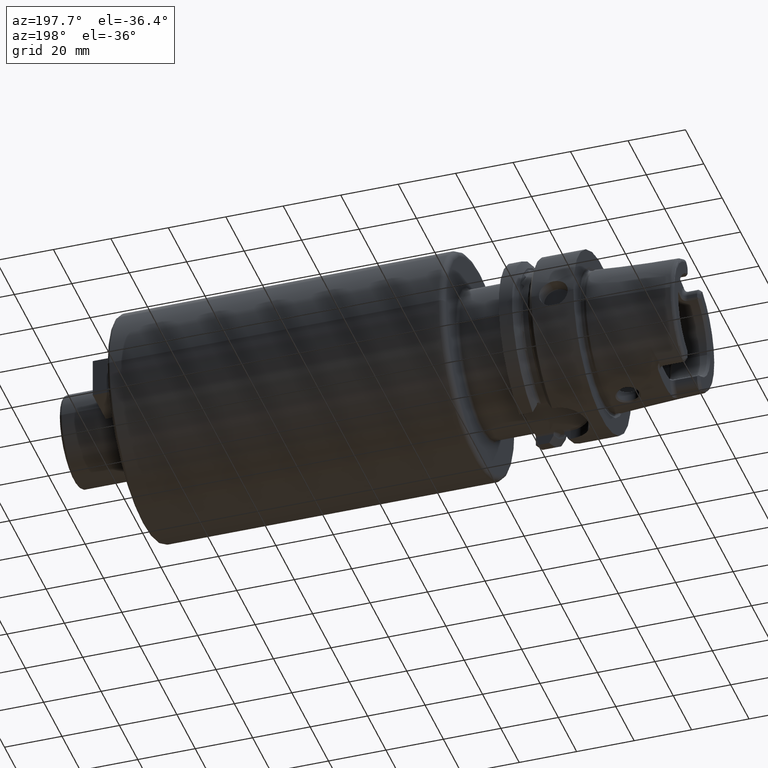
[diagram: clean part render]
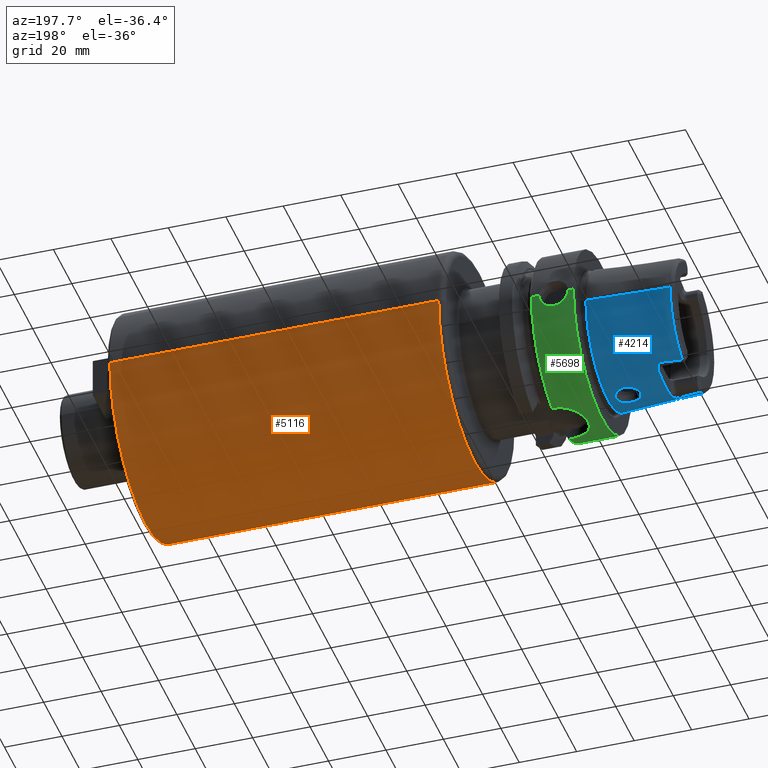
[diagram: same view with three faces highlighted in distinct colors, each labeled with its STEP entity id]
A machine part, auxiliary view with three faces highlighted in distinct colors.
Their STEP definitions:

[orange] entity #5116 — the highlighted cylindrical surface (partial cylindrical patch) has radius 39 mm, axis along (1, 0, 0).
#1526=CARTESIAN_POINT('',(4.45E1,0.E0,0.E0));
#1527=DIRECTION('',(1.E0,0.E0,0.E0));
#1528=DIRECTION('',(0.E0,-1.E0,0.E0));
#1529=AXIS2_PLACEMENT_3D('',#1526,#1527,#1528);
#1531=DIRECTION('',(-1.E0,0.E0,0.E0));
#1532=VECTOR('',#1531,1.145E2);
#1533=CARTESIAN_POINT('',(1.59E2,-3.9E1,2.205712108743E-14));
#1534=LINE('',#1533,#1532);
#1535=CARTESIAN_POINT('',(1.59E2,0.E0,0.E0));
#1536=DIRECTION('',(-1.E0,0.E0,0.E0));
#1537=DIRECTION('',(0.E0,1.E0,0.E0));
#1538=AXIS2_PLACEMENT_3D('',#1535,#1536,#1537);
#1540=DIRECTION('',(-1.E0,0.E0,0.E0));
#1541=VECTOR('',#1540,1.145E2);
#1542=CARTESIAN_POINT('',(1.59E2,3.9E1,-2.325115171660E-14));
#1543=LINE('',#1542,#1541);
#3267=CARTESIAN_POINT('',(1.59E2,3.9E1,0.E0));
#3268=CARTESIAN_POINT('',(1.59E2,-3.9E1,0.E0));
#3269=VERTEX_POINT('',#3267);
#3270=VERTEX_POINT('',#3268);
#3368=CARTESIAN_POINT('',(4.45E1,-3.9E1,0.E0));
#3369=CARTESIAN_POINT('',(4.45E1,3.9E1,0.E0));
#3370=VERTEX_POINT('',#3368);
#3371=VERTEX_POINT('',#3369);
#5102=CARTESIAN_POINT('',(1.81E1,0.E0,0.E0));
#5103=DIRECTION('',(1.E0,0.E0,0.E0));
#5104=DIRECTION('',(0.E0,-1.E0,0.E0));
#5105=AXIS2_PLACEMENT_3D('',#5102,#5103,#5104);
#5106=CYLINDRICAL_SURFACE('',#5105,3.9E1);
#5107=ORIENTED_EDGE('',*,*,#5092,.F.);
#5109=ORIENTED_EDGE('',*,*,#5108,.F.);
#5111=ORIENTED_EDGE('',*,*,#5110,.F.);
#5113=ORIENTED_EDGE('',*,*,#5112,.T.);
#5114=EDGE_LOOP('',(#5107,#5109,#5111,#5113));
#5115=FACE_OUTER_BOUND('',#5114,.F.);
#5116=ADVANCED_FACE('',(#5115),#5106,.T.);
#1530=CIRCLE('',#1529,3.9E1);
#1539=CIRCLE('',#1538,3.9E1);
#5092=EDGE_CURVE('',#3370,#3371,#1530,.T.);
#5108=EDGE_CURVE('',#3270,#3370,#1534,.T.);
#5110=EDGE_CURVE('',#3269,#3270,#1539,.T.);
#5112=EDGE_CURVE('',#3269,#3371,#1543,.T.);

[blue] entity #4214 — the highlighted conical surface has half-angle 2.868 deg.
#172=CARTESIAN_POINT('',(-3.086004306431E1,9.562027931336E0,-2.067E1));
#180=CARTESIAN_POINT('',(-3.086004306431E1,0.E0,0.E0));
#181=DIRECTION('',(-1.E0,0.E0,0.E0));
#182=DIRECTION('',(0.E0,1.E0,0.E0));
#183=AXIS2_PLACEMENT_3D('',#180,#181,#182);
#266=CARTESIAN_POINT('',(-3.086004306431E1,0.E0,0.E0));
#267=DIRECTION('',(-1.E0,0.E0,0.E0));
#268=DIRECTION('',(0.E0,-4.198553792210E-1,-9.075910205259E-1));
#269=AXIS2_PLACEMENT_3D('',#266,#267,#268);
#715=CARTESIAN_POINT('',(-2.35E1,-1.040978349090E1,-2.067E1));
#716=CARTESIAN_POINT('',(-2.344355022851E1,-1.041607090076E1,-2.067E1));
#717=CARTESIAN_POINT('',(-2.332956993861E1,-1.041630964332E1,
-2.067627649687E1));
#718=CARTESIAN_POINT('',(-2.315431779142E1,-1.037517685704E1,
-2.070680447798E1));
#719=CARTESIAN_POINT('',(-2.298610382819E1,-1.029332142770E1,
-2.075709446100E1));
#720=CARTESIAN_POINT('',(-2.282168004898E1,-1.016791062235E1,
-2.082809580409E1));
#721=CARTESIAN_POINT('',(-2.266724538325E1,-9.999284585470E0,
-2.091827708343E1));
#722=CARTESIAN_POINT('',(-2.252949651780E1,-9.795860386621E0,
-2.102205159226E1));
#723=CARTESIAN_POINT('',(-2.240609239614E1,-9.556317791147E0,
-2.113897791639E1));
#724=CARTESIAN_POINT('',(-2.233295118151E1,-9.369771312934E0,
-2.122596447282E1));
#725=CARTESIAN_POINT('',(-2.229902715702E1,-9.27E0,-2.127129858661E1));
#732=CARTESIAN_POINT('',(-2.229902715702E1,-9.27E0,-2.127129858661E1));
#733=CARTESIAN_POINT('',(-2.223399395074E1,-9.078735889296E0,
-2.135820522042E1));
#734=CARTESIAN_POINT('',(-2.212138063131E1,-8.709703982970E0,
-2.151897497246E1));
#735=CARTESIAN_POINT('',(-2.202143095510E1,-8.195867731278E0,
-2.172483116732E1));
#736=CARTESIAN_POINT('',(-2.2E1,-7.876905772307E0,-2.184209600703E1));
#737=CARTESIAN_POINT('',(-2.2E1,-7.723914364163E0,-2.189606426911E1));
#744=CARTESIAN_POINT('',(-3.086004306431E1,9.562027931336E0,-2.067E1));
#745=CARTESIAN_POINT('',(-3.006933576531E1,9.656377942908E0,-2.067E1));
#746=CARTESIAN_POINT('',(-2.846987211493E1,9.844931102331E0,-2.067E1));
#747=CARTESIAN_POINT('',(-2.601704943476E1,1.012739619931E1,-2.067E1));
#748=CARTESIAN_POINT('',(-2.434508424921E1,1.031565749353E1,-2.067E1));
#749=CARTESIAN_POINT('',(-2.35E1,1.040978349090E1,-2.067E1));
#751=CARTESIAN_POINT('',(-2.2E1,0.E0,0.E0));
#752=DIRECTION('',(1.E0,0.E0,0.E0));
#753=DIRECTION('',(0.E0,-3.326627708379E-1,-9.430458530201E-1));
#754=AXIS2_PLACEMENT_3D('',#751,#752,#753);
#756=CARTESIAN_POINT('',(-2.35E1,-1.040978349090E1,-2.067E1));
#757=CARTESIAN_POINT('',(-2.434499363207E1,-1.031566758652E1,-2.067E1));
#758=CARTESIAN_POINT('',(-2.601683809497E1,-1.012742018211E1,-2.067E1));
#759=CARTESIAN_POINT('',(-2.846966522954E1,-9.844955281726E0,-2.067E1));
#760=CARTESIAN_POINT('',(-3.006924714753E1,-9.656388517097E0,-2.067E1));
#761=CARTESIAN_POINT('',(-3.086004306431E1,-9.562027931336E0,-2.067E1));
#763=DIRECTION('',(-9.987474205320E-1,5.003588692862E-2,0.E0));
#764=VECTOR('',#763,2.889623789861E1);
#765=CARTESIAN_POINT('',(-2.E0,-2.422042414966E1,0.E0));
#766=LINE('',#765,#764);
#767=CARTESIAN_POINT('',(-2.E0,0.E0,0.E0));
#768=DIRECTION('',(1.E0,0.E0,0.E0));
#769=DIRECTION('',(0.E0,-1.E0,0.E0));
#770=AXIS2_PLACEMENT_3D('',#767,#768,#769);
#772=DIRECTION('',(-9.987474205320E-1,-5.003588692862E-2,0.E0));
#773=VECTOR('',#772,2.889623789861E1);
#774=CARTESIAN_POINT('',(-2.E0,2.422042414966E1,0.E0));
#775=LINE('',#774,#773);
#776=CARTESIAN_POINT('',(-4.750586214018E0,5.673461659763E-9,
-2.408258339423E1));
#777=CARTESIAN_POINT('',(-4.750477437961E0,2.111411076152E-1,
-2.408258884376E1));
#778=CARTESIAN_POINT('',(-4.781495656806E0,6.343409338442E-1,
-2.407562144168E1));
#779=CARTESIAN_POINT('',(-4.930078657106E0,1.283914855647E0,-2.404224907910E1));
#780=CARTESIAN_POINT('',(-5.182634392381E0,1.908800454949E0,-2.398769888200E1));
#781=CARTESIAN_POINT('',(-5.529831450162E0,2.484539069761E0,-2.391697022480E1));
#782=CARTESIAN_POINT('',(-5.960551469368E0,2.995586150016E0,-2.383614077825E1));
#783=CARTESIAN_POINT('',(-6.473793439058E0,3.438507792172E0,-2.374982588457E1));
#784=CARTESIAN_POINT('',(-7.048787066123E0,3.792204015972E0,-2.366626747645E1));
#785=CARTESIAN_POINT('',(-7.671452269175E0,4.050490920343E0,-2.359141310307E1));
#786=CARTESIAN_POINT('',(-8.326498075054E0,4.207389863949E0,-2.353035449331E1));
#787=CARTESIAN_POINT('',(-8.996688113385E0,4.259622037115E0,-2.348674331493E1));
#788=CARTESIAN_POINT('',(-9.664449704733E0,4.206963769363E0,-2.346231724919E1));
#789=CARTESIAN_POINT('',(-1.031524077611E1,4.051442761029E0,-2.345681057565E1));
#790=CARTESIAN_POINT('',(-1.093485325951E1,3.796098039719E0,-2.346839797168E1));
#791=CARTESIAN_POINT('',(-1.150677686976E1,3.447081430360E0,-2.349368587605E1));
#792=CARTESIAN_POINT('',(-1.201610511114E1,3.013688514077E0,-2.352797212386E1));
#793=CARTESIAN_POINT('',(-1.245275273991E1,2.504280742997E0,-2.356616658718E1));
#794=CARTESIAN_POINT('',(-1.280634613041E1,1.927107192660E0,-2.360307496745E1));
#795=CARTESIAN_POINT('',(-1.306351718265E1,1.301776136825E0,-2.363325793045E1));
#796=CARTESIAN_POINT('',(-1.321667495617E1,6.483699009348E-1,
-2.365261938940E1));
#797=CARTESIAN_POINT('',(-1.324953338827E1,2.167159282651E-1,
-2.365680321669E1));
#798=CARTESIAN_POINT('',(-1.324940828071E1,6.149879737228E-9,
-2.365680948441E1));
#800=CARTESIAN_POINT('',(-1.324940828071E1,6.149879737228E-9,
-2.365680948441E1));
#801=CARTESIAN_POINT('',(-1.324953102801E1,-2.137481481882E-1,
-2.365680333493E1));
#802=CARTESIAN_POINT('',(-1.321763433537E1,-6.412975014817E-1,
-2.365274945467E1));
#803=CARTESIAN_POINT('',(-1.306535183772E1,-1.296633810944E0,
-2.363348136753E1));
#804=CARTESIAN_POINT('',(-1.280777805154E1,-1.924231879999E0,
-2.360323471178E1));
#805=CARTESIAN_POINT('',(-1.245640925213E1,-2.498853587660E0,
-2.356653312143E1));
#806=CARTESIAN_POINT('',(-1.202279775894E1,-3.007095564138E0,
-2.352849478770E1));
#807=CARTESIAN_POINT('',(-1.151012912941E1,-3.444950000041E0,
-2.349384632376E1));
#808=CARTESIAN_POINT('',(-1.093833543731E1,-3.794219313343E0,
-2.346852201482E1));
#809=CARTESIAN_POINT('',(-1.031975853695E1,-4.049996047184E0,
-2.345683414568E1));
#810=CARTESIAN_POINT('',(-9.668027880621E0,-4.206485188960E0,
-2.346222186835E1));
#811=CARTESIAN_POINT('',(-8.998732245580E0,-4.259676561364E0,
-2.348662929012E1));
#812=CARTESIAN_POINT('',(-8.327946517995E0,-4.207637743620E0,
-2.353023608986E1));
#813=CARTESIAN_POINT('',(-7.672280726344E0,-4.050816496641E0,
-2.359131552533E1));
#814=CARTESIAN_POINT('',(-7.048298445734E0,-3.792045808672E0,
-2.366632099982E1));
#815=CARTESIAN_POINT('',(-6.472887987830E0,-3.437795786313E0,
-2.374997505426E1));
#816=CARTESIAN_POINT('',(-5.960766318899E0,-2.995689730409E0,
-2.383610614678E1));
#817=CARTESIAN_POINT('',(-5.531187494687E0,-2.486290041474E0,
-2.391671147691E1));
#818=CARTESIAN_POINT('',(-5.183401261358E0,-1.910526594455E0,
-2.398753185570E1));
#819=CARTESIAN_POINT('',(-4.929997199649E0,-1.284003067748E0,
-2.404226458263E1));
#820=CARTESIAN_POINT('',(-4.781340780308E0,-6.332209723674E-1,
-2.407566103624E1));
#821=CARTESIAN_POINT('',(-4.750402434471E0,-2.105981632370E-1,
-2.408259260134E1));
#822=CARTESIAN_POINT('',(-4.750586214018E0,5.673461659763E-9,
-2.408258339423E1));
#832=CARTESIAN_POINT('',(-2.229902715702E1,9.27E0,-2.127129858661E1));
#833=CARTESIAN_POINT('',(-2.233311157770E1,9.370243041714E0,-2.122575012858E1));
#834=CARTESIAN_POINT('',(-2.240658425841E1,9.557497215840E0,-2.113842140416E1));
#835=CARTESIAN_POINT('',(-2.253041527230E1,9.797438074146E0,-2.102126542838E1));
#836=CARTESIAN_POINT('',(-2.266830373788E1,1.000064778809E1,-2.091756656395E1));
#837=CARTESIAN_POINT('',(-2.282373330426E1,1.017005110462E1,-2.082694270310E1));
#838=CARTESIAN_POINT('',(-2.299261366970E1,1.029790438197E1,-2.075446014923E1));
#839=CARTESIAN_POINT('',(-2.316533457542E1,1.037882348161E1,-2.070435505978E1));
#840=CARTESIAN_POINT('',(-2.333269177476E1,1.041609135758E1,-2.067621009348E1));
#841=CARTESIAN_POINT('',(-2.344467268621E1,1.041594588074E1,-2.067E1));
#842=CARTESIAN_POINT('',(-2.35E1,1.040978349090E1,-2.067E1));
#844=CARTESIAN_POINT('',(-2.2E1,7.723914364163E0,-2.189606426911E1));
#845=CARTESIAN_POINT('',(-2.2E1,7.876901135824E0,-2.184209764257E1));
#846=CARTESIAN_POINT('',(-2.202143124879E1,8.195856320393E0,-2.172483505793E1));
#847=CARTESIAN_POINT('',(-2.212136508173E1,8.709641843939E0,-2.151900085185E1));
#848=CARTESIAN_POINT('',(-2.223398514363E1,9.078709987396E0,-2.135821698973E1));
#849=CARTESIAN_POINT('',(-2.229902715702E1,9.27E0,-2.127129858661E1));
#2873=CARTESIAN_POINT('',(-2.E0,2.422042414966E1,0.E0));
#2874=CARTESIAN_POINT('',(-2.E0,-2.422042414966E1,0.E0));
#2875=VERTEX_POINT('',#2873);
#2876=VERTEX_POINT('',#2874);
#2877=CARTESIAN_POINT('',(-3.086004306431E1,2.277457525750E1,0.E0));
#2878=VERTEX_POINT('',#2877);
#2879=CARTESIAN_POINT('',(-3.086004306431E1,-2.277457525750E1,0.E0));
#2880=VERTEX_POINT('',#2879);
#2998=VERTEX_POINT('',#172);
#3000=CARTESIAN_POINT('',(-3.086004306431E1,-9.562027931336E0,-2.067E1));
#3001=VERTEX_POINT('',#3000);
#3004=CARTESIAN_POINT('',(-2.229902715702E1,-9.27E0,-2.127129858661E1));
#3006=VERTEX_POINT('',#3004);
#3007=VERTEX_POINT('',#737);
#3008=VERTEX_POINT('',#844);
#3009=VERTEX_POINT('',#849);
#3020=CARTESIAN_POINT('',(-2.35E1,-1.040978349090E1,-2.067E1));
#3021=VERTEX_POINT('',#3020);
#3022=CARTESIAN_POINT('',(-2.35E1,1.040978349090E1,-2.067E1));
#3023=VERTEX_POINT('',#3022);
#3088=VERTEX_POINT('',#776);
#3089=VERTEX_POINT('',#798);
#4184=CARTESIAN_POINT('',(-1.643002153216E1,0.E0,0.E0));
#4185=DIRECTION('',(1.E0,0.E0,0.E0));
#4186=DIRECTION('',(0.E0,-1.E0,0.E0));
#4187=AXIS2_PLACEMENT_3D('',#4184,#4185,#4186);
#4188=CONICAL_SURFACE('',#4187,2.349749970358E1,2.868042729042E0);
#4190=ORIENTED_EDGE('',*,*,#4189,.T.);
#4192=ORIENTED_EDGE('',*,*,#4191,.F.);
#4194=ORIENTED_EDGE('',*,*,#4193,.F.);
#4196=ORIENTED_EDGE('',*,*,#4195,.F.);
#4197=ORIENTED_EDGE('',*,*,#4174,.F.);
#4198=ORIENTED_EDGE('',*,*,#4163,.F.);
#4199=ORIENTED_EDGE('',*,*,#4150,.T.);
#4200=ORIENTED_EDGE('',*,*,#3553,.T.);
#4201=ORIENTED_EDGE('',*,*,#3411,.F.);
#4203=ORIENTED_EDGE('',*,*,#4202,.T.);
#4204=ORIENTED_EDGE('',*,*,#3407,.T.);
#4205=ORIENTED_EDGE('',*,*,#3525,.T.);
#4206=EDGE_LOOP('',(#4190,#4192,#4194,#4196,#4197,#4198,#4199,#4200,#4201,#4203,
#4204,#4205));
#4207=FACE_OUTER_BOUND('',#4206,.F.);
#4209=ORIENTED_EDGE('',*,*,#4208,.F.);
#4211=ORIENTED_EDGE('',*,*,#4210,.F.);
#4212=EDGE_LOOP('',(#4209,#4211));
#4213=FACE_BOUND('',#4212,.F.);
#4214=ADVANCED_FACE('',(#4207,#4213),#4188,.T.);
#184=CIRCLE('',#183,2.277457525750E1);
#270=CIRCLE('',#269,2.277457525750E1);
#726=B_SPLINE_CURVE_WITH_KNOTS('',3,(#715,#716,#717,#718,#719,#720,#721,#722,
#723,#724,#725),.UNSPECIFIED.,.F.,.F.,(4,1,1,1,1,1,1,1,4),(0.E0,1.25E-1,2.5E-1,
3.75E-1,5.E-1,6.25E-1,7.5E-1,8.75E-1,1.E0),.UNSPECIFIED.);
#738=B_SPLINE_CURVE_WITH_KNOTS('',3,(#732,#733,#734,#735,#736,#737),
.UNSPECIFIED.,.F.,.F.,(4,1,1,4),(0.E0,3.333333333333E-1,6.666666666667E-1,1.E0),
.UNSPECIFIED.);
#750=B_SPLINE_CURVE_WITH_KNOTS('',3,(#744,#745,#746,#747,#748,#749),
.UNSPECIFIED.,.F.,.F.,(4,1,1,4),(0.E0,3.333333333333E-1,6.666666666667E-1,1.E0),
.UNSPECIFIED.);
#755=CIRCLE('',#754,2.321845136054E1);
#762=B_SPLINE_CURVE_WITH_KNOTS('',3,(#756,#757,#758,#759,#760,#761),
.UNSPECIFIED.,.F.,.F.,(4,1,1,4),(0.E0,3.333333333333E-1,6.666666666667E-1,1.E0),
.UNSPECIFIED.);
#771=CIRCLE('',#770,2.422042414966E1);
#799=B_SPLINE_CURVE_WITH_KNOTS('',3,(#776,#777,#778,#779,#780,#781,#782,#783,
#784,#785,#786,#787,#788,#789,#790,#791,#792,#793,#794,#795,#796,#797,#798),
.UNSPECIFIED.,.F.,.F.,(4,1,1,1,1,1,1,1,1,1,1,1,1,1,1,1,1,1,1,1,4),(0.E0,5.E-2,
1.E-1,1.5E-1,2.E-1,2.5E-1,3.E-1,3.5E-1,4.E-1,4.5E-1,5.E-1,5.5E-1,6.E-1,6.5E-1,
7.E-1,7.5E-1,8.E-1,8.5E-1,9.E-1,9.5E-1,1.E0),.UNSPECIFIED.);
#823=B_SPLINE_CURVE_WITH_KNOTS('',3,(#800,#801,#802,#803,#804,#805,#806,#807,
#808,#809,#810,#811,#812,#813,#814,#815,#816,#817,#818,#819,#820,#821,#822),
.UNSPECIFIED.,.F.,.F.,(4,1,1,1,1,1,1,1,1,1,1,1,1,1,1,1,1,1,1,1,4),(0.E0,5.E-2,
1.E-1,1.5E-1,2.E-1,2.5E-1,3.E-1,3.5E-1,4.E-1,4.5E-1,5.E-1,5.5E-1,6.E-1,6.5E-1,
7.E-1,7.5E-1,8.E-1,8.5E-1,9.E-1,9.5E-1,1.E0),.UNSPECIFIED.);
#843=B_SPLINE_CURVE_WITH_KNOTS('',3,(#832,#833,#834,#835,#836,#837,#838,#839,
#840,#841,#842),.UNSPECIFIED.,.F.,.F.,(4,1,1,1,1,1,1,1,4),(0.E0,1.25E-1,2.5E-1,
3.75E-1,5.E-1,6.25E-1,7.5E-1,8.75E-1,1.E0),.UNSPECIFIED.);
#850=B_SPLINE_CURVE_WITH_KNOTS('',3,(#844,#845,#846,#847,#848,#849),
.UNSPECIFIED.,.F.,.F.,(4,1,1,4),(0.E0,3.333333333333E-1,6.666666666667E-1,1.E0),
.UNSPECIFIED.);
#3407=EDGE_CURVE('',#2875,#2878,#775,.T.);
#3411=EDGE_CURVE('',#2876,#2880,#766,.T.);
#3525=EDGE_CURVE('',#2878,#2998,#184,.T.);
#3553=EDGE_CURVE('',#3001,#2880,#270,.T.);
#4150=EDGE_CURVE('',#3021,#3001,#762,.T.);
#4163=EDGE_CURVE('',#3021,#3006,#726,.T.);
#4174=EDGE_CURVE('',#3006,#3007,#738,.T.);
#4189=EDGE_CURVE('',#2998,#3023,#750,.T.);
#4191=EDGE_CURVE('',#3009,#3023,#843,.T.);
#4193=EDGE_CURVE('',#3008,#3009,#850,.T.);
#4195=EDGE_CURVE('',#3007,#3008,#755,.T.);
#4202=EDGE_CURVE('',#2876,#2875,#771,.T.);
#4208=EDGE_CURVE('',#3088,#3089,#799,.T.);
#4210=EDGE_CURVE('',#3089,#3088,#823,.T.);

[green] entity #5698 — the highlighted cylindrical surface (partial cylindrical patch) has radius 31.5 mm, axis along (1, 0, 0).
#1073=CARTESIAN_POINT('',(-1.421085471520E-14,0.E0,0.E0));
#1074=DIRECTION('',(-1.E0,0.E0,0.E0));
#1075=DIRECTION('',(0.E0,1.E0,0.E0));
#1076=AXIS2_PLACEMENT_3D('',#1073,#1074,#1075);
#1124=CARTESIAN_POINT('',(2.E0,3.15E1,-1.916034746595E-14));
#1126=CARTESIAN_POINT('',(1.2E1,3.15E1,0.E0));
#1895=CARTESIAN_POINT('',(1.39675E1,9.0175E0,-3.018169467989E1));
#1896=CARTESIAN_POINT('',(1.358558656281E1,9.0175E0,-3.018169467989E1));
#1897=CARTESIAN_POINT('',(1.282118465468E1,8.969691357916E0,-3.019604517684E1));
#1898=CARTESIAN_POINT('',(1.165591828593E1,8.743491566228E0,-3.026274300150E1));
#1899=CARTESIAN_POINT('',(1.052276298313E1,8.361963120688E0,-3.037104920547E1));
#1900=CARTESIAN_POINT('',(9.456122836012E0,7.837772025634E0,-3.051135915032E1));
#1901=CARTESIAN_POINT('',(8.470252282138E0,7.180724754911E0,-3.067358430769E1));
#1902=CARTESIAN_POINT('',(7.575631308163E0,6.398050863983E0,-3.084741609441E1));
#1903=CARTESIAN_POINT('',(6.786194961893E0,5.497065304782E0,-3.102161724462E1));
#1904=CARTESIAN_POINT('',(6.130229967676E0,4.511622175765E0,-3.118093411543E1));
#1905=CARTESIAN_POINT('',(5.609342792779E0,3.453031312959E0,-3.131662634576E1));
#1906=CARTESIAN_POINT('',(5.228345621102E0,2.326812347583E0,-3.142101017036E1));
#1907=CARTESIAN_POINT('',(4.999797746036E0,1.164288452435E0,-3.148568890825E1));
#1908=CARTESIAN_POINT('',(4.925086592477E0,-1.642939922344E-4,
-3.150715972921E1));
#1909=CARTESIAN_POINT('',(4.999855898167E0,-1.164866928839E0,
-3.148567217088E1));
#1910=CARTESIAN_POINT('',(5.228566513789E0,-2.327652949522E0,
-3.142094829471E1));
#1911=CARTESIAN_POINT('',(5.609617740094E0,-3.453657849156E0,
-3.131655310854E1));
#1912=CARTESIAN_POINT('',(6.130421690937E0,-4.511937610781E0,
-3.118088635565E1));
#1913=CARTESIAN_POINT('',(6.786402135999E0,-5.497346241188E0,
-3.102156844966E1));
#1914=CARTESIAN_POINT('',(7.576014991373E0,-6.398444919226E0,
-3.084733497918E1));
#1915=CARTESIAN_POINT('',(8.470738074749E0,-7.181093772441E0,
-3.067349724349E1));
#1916=CARTESIAN_POINT('',(9.456668390199E0,-7.838101066607E0,
-3.051127521442E1));
#1917=CARTESIAN_POINT('',(1.052385858790E1,-8.362443708215E0,
-3.037091729406E1));
#1918=CARTESIAN_POINT('',(1.165737665338E1,-8.743869582945E0,
-3.026263280158E1));
#1919=CARTESIAN_POINT('',(1.282210884292E1,-8.969775642486E0,
-3.019601972103E1));
#1920=CARTESIAN_POINT('',(1.358595047E1,-9.0175E0,-3.018169467989E1));
#1921=CARTESIAN_POINT('',(1.39675E1,-9.0175E0,-3.018169467989E1));
#1923=DIRECTION('',(1.E0,0.E0,0.E0));
#1924=VECTOR('',#1923,6.550009252407E-1);
#1925=CARTESIAN_POINT('',(1.39675E1,9.0175E0,-3.018169467989E1));
#1926=LINE('',#1925,#1924);
#1927=CARTESIAN_POINT('',(1.462250092524E1,0.E0,0.E0));
#1928=DIRECTION('',(1.E0,0.E0,0.E0));
#1929=DIRECTION('',(0.E0,2.862698412698E-1,-9.581490374568E-1));
#1930=AXIS2_PLACEMENT_3D('',#1927,#1928,#1929);
#1932=DIRECTION('',(-1.E0,0.E0,0.E0));
#1933=VECTOR('',#1932,2.622500925241E0);
#1934=CARTESIAN_POINT('',(1.462250092524E1,3.15E1,0.E0));
#1935=LINE('',#1934,#1933);
#1936=CARTESIAN_POINT('',(7.E0,3.110064308017E1,-5.E0));
#1937=CARTESIAN_POINT('',(7.237711971861E0,3.110064308017E1,-5.E0));
#1938=CARTESIAN_POINT('',(7.708364793932E0,3.110604176585E1,-4.966603280739E0));
#1939=CARTESIAN_POINT('',(8.409071627816E0,3.113002370339E1,-4.815048141531E0));
#1940=CARTESIAN_POINT('',(9.077383280619E0,3.116768201896E1,-4.566768250610E0));
#1941=CARTESIAN_POINT('',(9.709737219660E0,3.121653000009E1,-4.222389763166E0));
#1942=CARTESIAN_POINT('',(1.028259694179E1,3.127184472959E1,-3.794310232818E0));
#1943=CARTESIAN_POINT('',(1.079381736502E1,3.133002109497E1,-3.283144879213E0));
#1944=CARTESIAN_POINT('',(1.122187341968E1,3.138511895323E1,-2.710559209569E0));
#1945=CARTESIAN_POINT('',(1.156650397528E1,3.143365111660E1,-2.077946235915E0));
#1946=CARTESIAN_POINT('',(1.181475018474E1,3.147092885130E1,-1.410108381556E0));
#1947=CARTESIAN_POINT('',(1.196660689769E1,3.149467147123E1,
-7.086190467967E-1));
#1948=CARTESIAN_POINT('',(1.2E1,3.15E1,-2.377578867780E-1));
#1949=CARTESIAN_POINT('',(1.2E1,3.15E1,0.E0));
#1951=CARTESIAN_POINT('',(2.E0,3.15E1,-1.916034746595E-14));
#1952=CARTESIAN_POINT('',(2.E0,3.15E1,-2.377563632343E-1));
#1953=CARTESIAN_POINT('',(2.033376819090E0,3.149467390288E1,
-7.086329282889E-1));
#1954=CARTESIAN_POINT('',(2.185379667149E0,3.147090888892E1,-1.410571551366E0));
#1955=CARTESIAN_POINT('',(2.433605027219E0,3.143363519165E1,-2.078170817110E0));
#1956=CARTESIAN_POINT('',(2.778328809062E0,3.138509141893E1,-2.710884364051E0));
#1957=CARTESIAN_POINT('',(3.206392404829E0,3.132999596018E1,-3.283376693298E0));
#1958=CARTESIAN_POINT('',(3.717592314676E0,3.127182433739E1,-3.794478939285E0));
#1959=CARTESIAN_POINT('',(4.290556434518E0,3.121650481486E1,-4.222574092482E0));
#1960=CARTESIAN_POINT('',(4.922767506481E0,3.116767216438E1,-4.566833856024E0));
#1961=CARTESIAN_POINT('',(5.591173550853E0,3.113001241939E1,-4.815121163512E0));
#1962=CARTESIAN_POINT('',(6.291762024521E0,3.110604002637E1,-4.966613612597E0));
#1963=CARTESIAN_POINT('',(6.762337956938E0,3.110064308017E1,-5.E0));
#1964=CARTESIAN_POINT('',(7.E0,3.110064308017E1,-5.E0));
#1966=DIRECTION('',(-1.E0,0.E0,1.086605287208E-14));
#1967=VECTOR('',#1966,2.E0);
#1968=CARTESIAN_POINT('',(2.E0,3.15E1,-1.916034746595E-14));
#1969=LINE('',#1968,#1967);
#1970=DIRECTION('',(-1.E0,0.E0,0.E0));
#1971=VECTOR('',#1970,1.462250092524E1);
#1972=CARTESIAN_POINT('',(1.462250092524E1,-3.15E1,0.E0));
#1973=LINE('',#1972,#1971);
#1974=CARTESIAN_POINT('',(1.462250092524E1,0.E0,0.E0));
#1975=DIRECTION('',(1.E0,0.E0,0.E0));
#1976=DIRECTION('',(0.E0,-1.E0,0.E0));
#1977=AXIS2_PLACEMENT_3D('',#1974,#1975,#1976);
#1979=DIRECTION('',(1.E0,0.E0,0.E0));
#1980=VECTOR('',#1979,6.550009252407E-1);
#1981=CARTESIAN_POINT('',(1.39675E1,-9.0175E0,-3.018169467989E1));
#1982=LINE('',#1981,#1980);
#2853=CARTESIAN_POINT('',(-1.421085471520E-14,3.15E1,0.E0));
#2854=CARTESIAN_POINT('',(-1.421085471520E-14,-3.15E1,0.E0));
#2855=VERTEX_POINT('',#2853);
#2856=VERTEX_POINT('',#2854);
#3074=CARTESIAN_POINT('',(1.462250092524E1,-3.15E1,0.E0));
#3075=VERTEX_POINT('',#3074);
#3102=CARTESIAN_POINT('',(7.E0,3.110064308017E1,-5.E0));
#3103=VERTEX_POINT('',#3102);
#3104=VERTEX_POINT('',#1124);
#3105=VERTEX_POINT('',#1126);
#3106=CARTESIAN_POINT('',(1.462250092524E1,3.15E1,0.E0));
#3107=VERTEX_POINT('',#3106);
#3180=CARTESIAN_POINT('',(1.39675E1,-9.0175E0,-3.018169467989E1));
#3181=VERTEX_POINT('',#3180);
#3182=CARTESIAN_POINT('',(1.39675E1,9.0175E0,-3.018169467989E1));
#3183=VERTEX_POINT('',#3182);
#3212=CARTESIAN_POINT('',(1.462250092524E1,9.0175E0,-3.018169467989E1));
#3213=VERTEX_POINT('',#3212);
#3214=CARTESIAN_POINT('',(1.462250092524E1,-9.0175E0,-3.018169467989E1));
#3215=VERTEX_POINT('',#3214);
#5676=CARTESIAN_POINT('',(-3.49E1,0.E0,0.E0));
#5677=DIRECTION('',(1.E0,0.E0,0.E0));
#5678=DIRECTION('',(0.E0,-1.E0,0.E0));
#5679=AXIS2_PLACEMENT_3D('',#5676,#5677,#5678);
#5680=CYLINDRICAL_SURFACE('',#5679,3.15E1);
#5682=ORIENTED_EDGE('',*,*,#5681,.F.);
#5683=ORIENTED_EDGE('',*,*,#4794,.T.);
#5684=ORIENTED_EDGE('',*,*,#5600,.T.);
#5685=ORIENTED_EDGE('',*,*,#4672,.T.);
#5687=ORIENTED_EDGE('',*,*,#5686,.F.);
#5689=ORIENTED_EDGE('',*,*,#5688,.F.);
#5690=ORIENTED_EDGE('',*,*,#4666,.T.);
#5691=ORIENTED_EDGE('',*,*,#4641,.T.);
#5692=ORIENTED_EDGE('',*,*,#4663,.F.);
#5693=ORIENTED_EDGE('',*,*,#5615,.T.);
#5695=ORIENTED_EDGE('',*,*,#5694,.F.);
#5696=EDGE_LOOP('',(#5682,#5683,#5684,#5685,#5687,#5689,#5690,#5691,#5692,#5693,
#5695));
#5697=FACE_OUTER_BOUND('',#5696,.F.);
#5698=ADVANCED_FACE('',(#5697),#5680,.T.);
#1077=CIRCLE('',#1076,3.15E1);
#1922=B_SPLINE_CURVE_WITH_KNOTS('',3,(#1895,#1896,#1897,#1898,#1899,#1900,#1901,
#1902,#1903,#1904,#1905,#1906,#1907,#1908,#1909,#1910,#1911,#1912,#1913,#1914,
#1915,#1916,#1917,#1918,#1919,#1920,#1921),.UNSPECIFIED.,.F.,.F.,(4,1,1,1,1,1,1,
1,1,1,1,1,1,1,1,1,1,1,1,1,1,1,1,1,4),(0.E0,4.166666666667E-2,8.333333333333E-2,
1.25E-1,1.666666666667E-1,2.083333333333E-1,2.5E-1,2.916666666667E-1,
3.333333333333E-1,3.75E-1,4.166666666667E-1,4.583333333333E-1,5.E-1,
5.416666666667E-1,5.833333333333E-1,6.25E-1,6.666666666667E-1,7.083333333333E-1,
7.5E-1,7.916666666667E-1,8.333333333333E-1,8.75E-1,9.166666666667E-1,
9.583333333333E-1,1.E0),.UNSPECIFIED.);
#1931=CIRCLE('',#1930,3.15E1);
#1950=B_SPLINE_CURVE_WITH_KNOTS('',3,(#1936,#1937,#1938,#1939,#1940,#1941,#1942,
#1943,#1944,#1945,#1946,#1947,#1948,#1949),.UNSPECIFIED.,.F.,.F.,(4,1,1,1,1,1,1,
1,1,1,1,4),(0.E0,9.090909090909E-2,1.818181818182E-1,2.727272727273E-1,
3.636363636364E-1,4.545454545455E-1,5.454545454545E-1,6.363636363636E-1,
7.272727272727E-1,8.181818181818E-1,9.090909090909E-1,1.E0),.UNSPECIFIED.);
#1965=B_SPLINE_CURVE_WITH_KNOTS('',3,(#1951,#1952,#1953,#1954,#1955,#1956,#1957,
#1958,#1959,#1960,#1961,#1962,#1963,#1964),.UNSPECIFIED.,.F.,.F.,(4,1,1,1,1,1,1,
1,1,1,1,4),(0.E0,9.090909090909E-2,1.818181818182E-1,2.727272727273E-1,
3.636363636364E-1,4.545454545455E-1,5.454545454545E-1,6.363636363636E-1,
7.272727272727E-1,8.181818181818E-1,9.090909090909E-1,1.E0),.UNSPECIFIED.);
#1978=CIRCLE('',#1977,3.15E1);
#4641=EDGE_CURVE('',#2855,#2856,#1077,.T.);
#4663=EDGE_CURVE('',#3075,#2856,#1973,.T.);
#4666=EDGE_CURVE('',#3104,#2855,#1969,.T.);
#4672=EDGE_CURVE('',#3107,#3105,#1935,.T.);
#4794=EDGE_CURVE('',#3183,#3213,#1926,.T.);
#5600=EDGE_CURVE('',#3213,#3107,#1931,.T.);
#5615=EDGE_CURVE('',#3075,#3215,#1978,.T.);
#5681=EDGE_CURVE('',#3183,#3181,#1922,.T.);
#5686=EDGE_CURVE('',#3103,#3105,#1950,.T.);
#5688=EDGE_CURVE('',#3104,#3103,#1965,.T.);
#5694=EDGE_CURVE('',#3181,#3215,#1982,.T.);